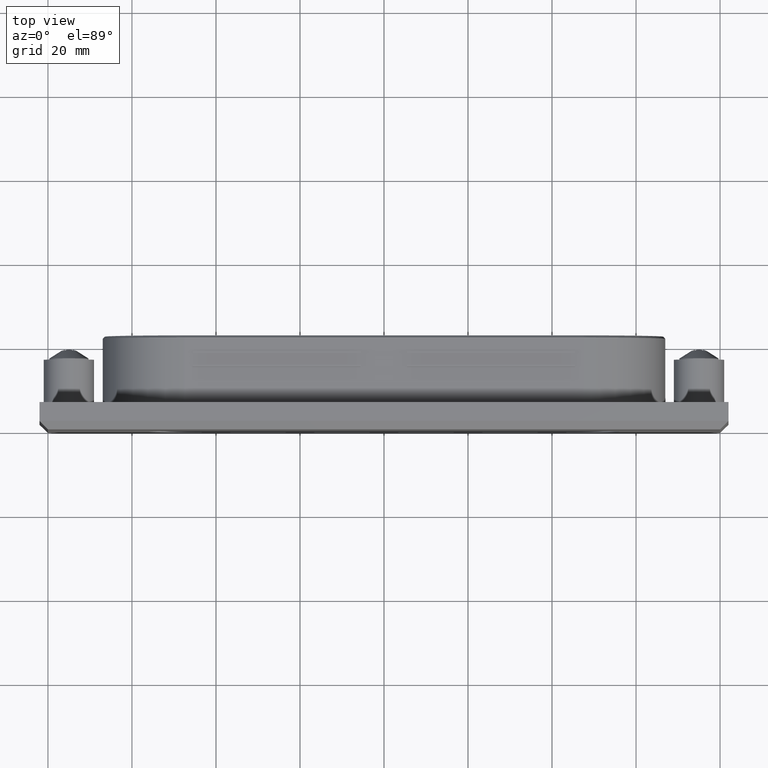
[diagram: clean part render]
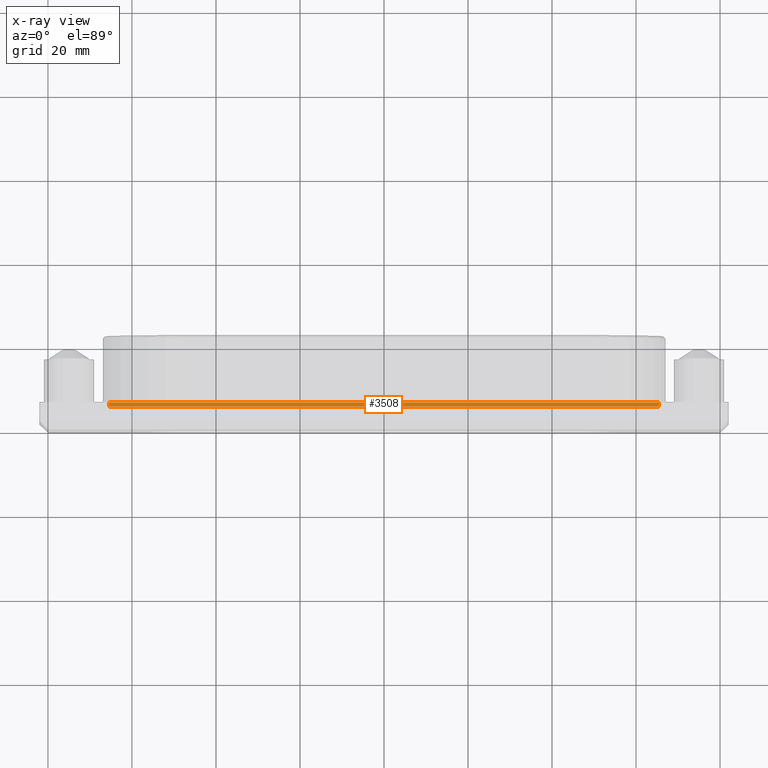
[diagram: x-ray — body ghosted, one internal face saturated and labeled with its STEP entity id]
A machine part, top view, then the same camera in x-ray: the body is ghosted and one INTERNAL B-rep face — a face not visible from any outside direction — is saturated and labeled: STEP entity #3508.
In plain terms, the highlighted face is a freeform B-spline surface patch.
Its self-contained STEP definition (entity closure, byte-faithful):
#3166=CARTESIAN_POINT('',(65.500000000000000,5.500000000000000,21.500000000000000));
#3167=VERTEX_POINT('',#3166);
#3168=CARTESIAN_POINT('',(-65.500000000000000,5.500000000000000,21.500000000000000));
#3169=VERTEX_POINT('',#3168);
#3170=CARTESIAN_POINT('',(65.500000000000000,5.500000000000000,21.500000000000000));
#3171=CARTESIAN_POINT('',(-65.500000000000000,5.500000000000000,21.500000000000000));
#3172=QUASI_UNIFORM_CURVE('',1,(#3170,#3171),.UNSPECIFIED.,.F.,.U.);
#3173=EDGE_CURVE('',#3167,#3169,#3172,.T.);
#3281=CARTESIAN_POINT('',(65.500000000000000,6.500000000000000,21.500000000000000));
#3282=VERTEX_POINT('',#3281);
#3302=CARTESIAN_POINT('',(65.500000000000000,5.500000000000000,21.500000000000000));
#3303=CARTESIAN_POINT('',(65.500000000000000,6.500000000000000,21.500000000000000));
#3304=QUASI_UNIFORM_CURVE('',1,(#3302,#3303),.UNSPECIFIED.,.F.,.U.);
#3305=EDGE_CURVE('',#3167,#3282,#3304,.T.);
#3468=CARTESIAN_POINT('',(-65.500000000000000,6.500000000000000,21.500000000000000));
#3469=VERTEX_POINT('',#3468);
#3483=CARTESIAN_POINT('',(-65.500000000000000,5.500000000000000,21.500000000000000));
#3484=CARTESIAN_POINT('',(-65.500000000000000,6.500000000000000,21.500000000000000));
#3485=QUASI_UNIFORM_CURVE('',1,(#3483,#3484),.UNSPECIFIED.,.F.,.U.);
#3486=EDGE_CURVE('',#3169,#3469,#3485,.T.);
#3493=CARTESIAN_POINT('',(72.043449746096570,5.450050001938195,21.500000000000000));
#3494=CARTESIAN_POINT('',(-72.043453259790383,5.450050001938195,21.500000000000000));
#3495=CARTESIAN_POINT('',(72.043449746096570,6.549950024883897,21.500000000000000));
#3496=CARTESIAN_POINT('',(-72.043453259790383,6.549950024883897,21.500000000000000));
#3497=B_SPLINE_SURFACE_WITH_KNOTS('',1,1,((#3493,#3495),(#3494,#3496)),.UNSPECIFIED.,.F.,.F.,.U.,(2,2),(2,2),(0.0,144.086903005886910),(0.041708334948495,0.958291687403247),.UNSPECIFIED.);
#3498=CARTESIAN_POINT('',(65.500000000000000,6.500000000000000,21.500000000000000));
#3499=CARTESIAN_POINT('',(-65.500000000000000,6.500000000000000,21.500000000000000));
#3500=QUASI_UNIFORM_CURVE('',1,(#3498,#3499),.UNSPECIFIED.,.F.,.U.);
#3501=EDGE_CURVE('',#3282,#3469,#3500,.T.);
#3502=ORIENTED_EDGE('',*,*,#3501,.F.);
#3503=ORIENTED_EDGE('',*,*,#3305,.F.);
#3504=ORIENTED_EDGE('',*,*,#3173,.T.);
#3505=ORIENTED_EDGE('',*,*,#3486,.T.);
#3506=EDGE_LOOP('',(#3502,#3503,#3504,#3505));
#3507=FACE_OUTER_BOUND('',#3506,.T.);
#3508=ADVANCED_FACE('',(#3507),#3497,.T.);